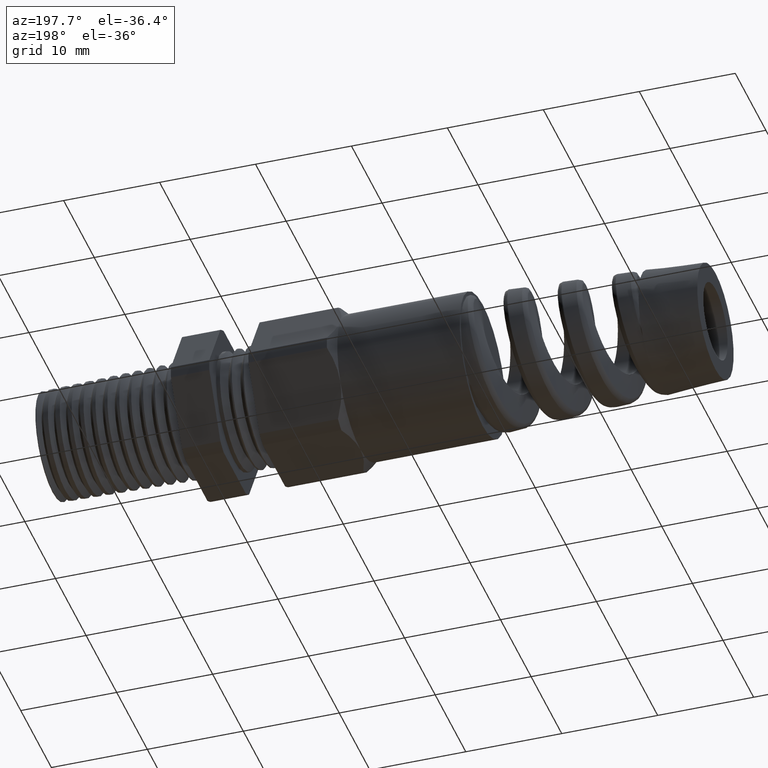
[diagram: clean part render]
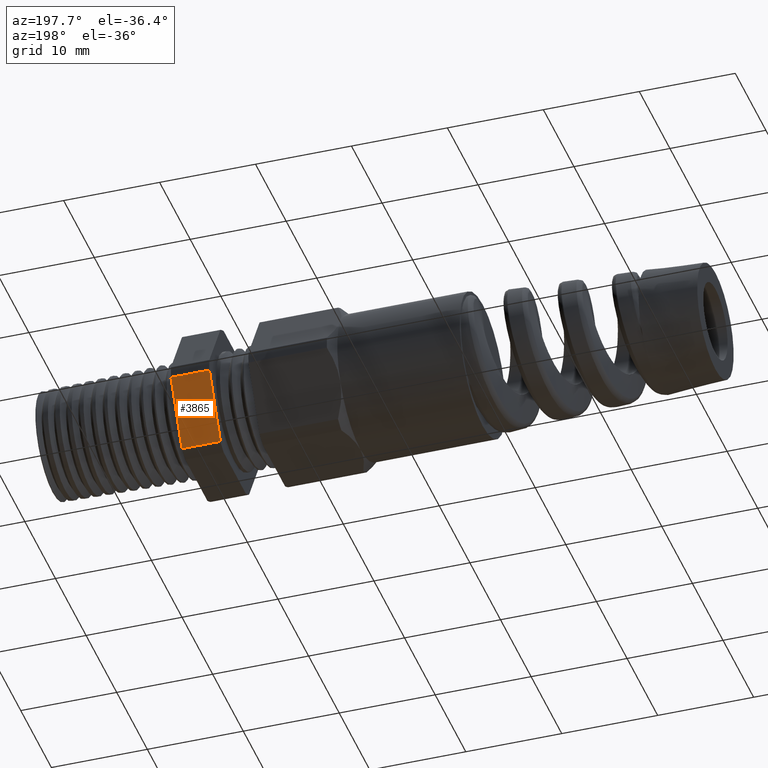
[diagram: same view with one face highlighted and labeled with its STEP entity id]
A machine part, auxiliary view. The second image highlights one B-rep face of the part: STEP entity #3865.
In plain terms, the highlighted planar face has unit normal (0, 0.866, -0.5).
Its self-contained STEP definition (entity closure, byte-faithful):
#2904 = CARTESIAN_POINT ( 'NONE',  ( -0.4674800000000000100, 0.1844167762407785100, -0.2705807737829105700 ) ) ;
#2979 = EDGE_CURVE ( 'NONE', #2983, #2984, #4616, .T. ) ;
#2983 = VERTEX_POINT ( 'NONE', #4589 ) ;
#2984 = VERTEX_POINT ( 'NONE', #4588 ) ;
#3551 = VERTEX_POINT ( 'NONE', #5259 ) ;
#3553 = EDGE_CURVE ( 'NONE', #3551, #3554, #5261, .T. ) ;
#3554 = VERTEX_POINT ( 'NONE', #2904 ) ;
#3712 = EDGE_CURVE ( 'NONE', #2984, #3551, #7608, .T. ) ;
#3796 = EDGE_LOOP ( 'NONE', ( #3797, #3798, #3799, #3822 ) ) ;
#3797 = ORIENTED_EDGE ( 'NONE', *, *, #3863, .T. ) ;
#3798 = ORIENTED_EDGE ( 'NONE', *, *, #3553, .F. ) ;
#3799 = ORIENTED_EDGE ( 'NONE', *, *, #3712, .F. ) ;
#3822 = ORIENTED_EDGE ( 'NONE', *, *, #2979, .F. ) ;
#3863 = EDGE_CURVE ( 'NONE', #2983, #3554, #7887, .T. ) ;
#3865 = ADVANCED_FACE ( 'NONE', ( #8212 ), #8214, .T. ) ;
#4588 = CARTESIAN_POINT ( 'NONE',  ( -0.3100000000000000000, 0.3265382119920401900, -0.02441922621708951900 ) ) ;
#4589 = CARTESIAN_POINT ( 'NONE',  ( -0.3100000000000000000, 0.1844167762407786000, -0.2705807737829105700 ) ) ;
#4609 = DIRECTION ( 'NONE',  ( 0.0000000000000000000, 0.5000000000000001100, 0.8660254037844386000 ) ) ;
#4610 = VECTOR ( 'NONE', #4609, 39.37007874015748100 ) ;
#4611 = CARTESIAN_POINT ( 'NONE',  ( -0.3100000000000000000, 0.4029774941164094300, 0.1079774941164093900 ) ) ;
#4616 = LINE ( 'NONE', #4611, #4610 ) ;
#5154 = DIRECTION ( 'NONE',  ( 0.0000000000000000000, -0.5000000000000001100, -0.8660254037844386000 ) ) ;
#5252 = VECTOR ( 'NONE', #5154, 39.37007874015748100 ) ;
#5259 = CARTESIAN_POINT ( 'NONE',  ( -0.4674800000000000100, 0.3265382119920402500, -0.02441922621708951900 ) ) ;
#5260 = CARTESIAN_POINT ( 'NONE',  ( -0.4674800000000000100, 0.4029774941164094300, 0.1079774941164093900 ) ) ;
#5261 = LINE ( 'NONE', #5260, #5252 ) ;
#7605 = DIRECTION ( 'NONE',  ( -1.000000000000000000, 0.0000000000000000000, 0.0000000000000000000 ) ) ;
#7606 = VECTOR ( 'NONE', #7605, 39.37007874015748100 ) ;
#7607 = CARTESIAN_POINT ( 'NONE',  ( 0.2800000000000001400, 0.3265382119920402500, -0.02441922621708951900 ) ) ;
#7608 = LINE ( 'NONE', #7607, #7606 ) ;
#7884 = VECTOR ( 'NONE', #8195, 39.37007874015748100 ) ;
#7886 = CARTESIAN_POINT ( 'NONE',  ( 0.2800000000000001400, 0.1844167762407786000, -0.2705807737829105700 ) ) ;
#7887 = LINE ( 'NONE', #7886, #7884 ) ;
#8195 = DIRECTION ( 'NONE',  ( -1.000000000000000000, 0.0000000000000000000, 0.0000000000000000000 ) ) ;
#8211 = CARTESIAN_POINT ( 'NONE',  ( 0.2800000000000001400, 0.3265382119920402500, -0.02441922621708951900 ) ) ;
#8212 = FACE_OUTER_BOUND ( 'NONE', #3796, .T. ) ;
#8213 = DIRECTION ( 'NONE',  ( 0.0000000000000000000, 0.5000000000000001100, 0.8660254037844386000 ) ) ;
#8214 = PLANE ( 'NONE',  #8216 ) ;
#8215 = DIRECTION ( 'NONE',  ( 0.0000000000000000000, 0.8660254037844386000, -0.5000000000000001100 ) ) ;
#8216 = AXIS2_PLACEMENT_3D ( 'NONE', #8211, #8215, #8213 ) ;